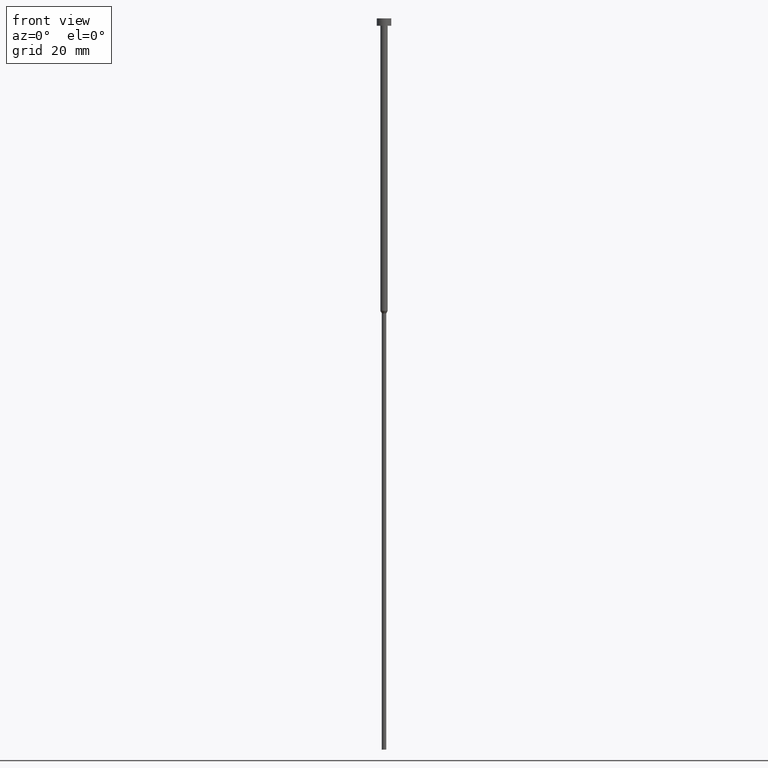
[diagram: clean part render]
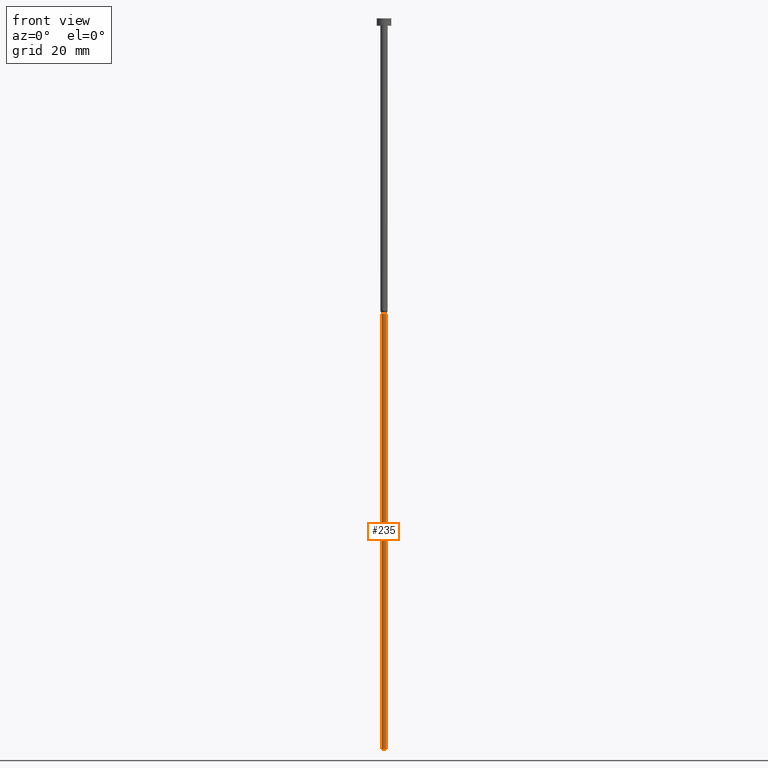
[diagram: same view with one face highlighted and labeled with its STEP entity id]
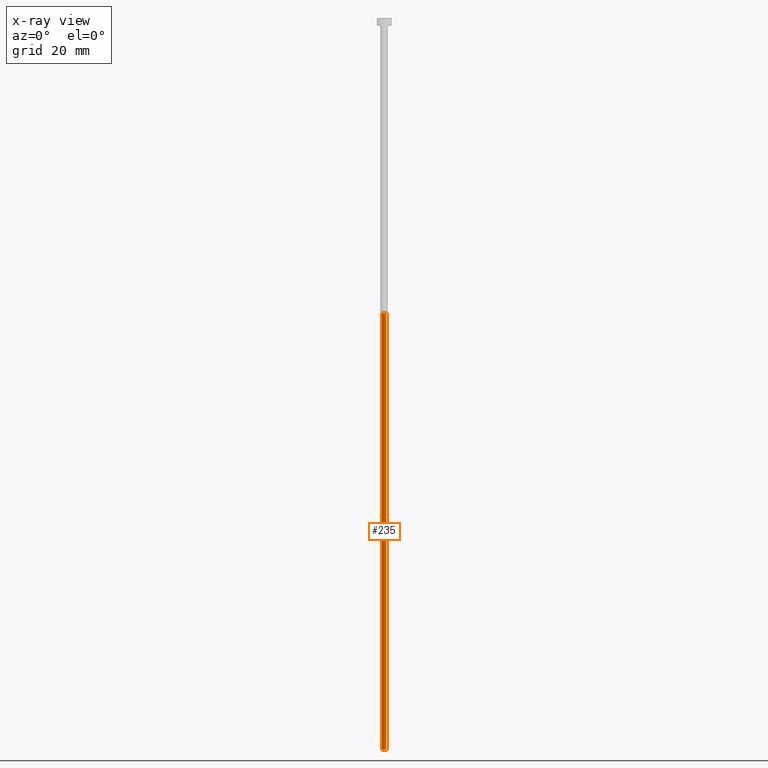
[diagram: x-ray of the same camera — body ghosted, the highlighted face saturated]
A machine part, front view. The second image highlights one B-rep face of the part: STEP entity #235.
The next image is the same camera in x-ray: the body ghosted, the highlighted face saturated — about 0% of this face is hidden behind the body in this view.
In plain terms, the highlighted cylindrical surface (edge-blend (fillet) strip) has radius 0.6 mm, axis along (-0, -0, 1).
Its self-contained STEP definition (entity closure, byte-faithful):
#4 = DIRECTION ( 'NONE',  ( 1.000000000000000000, 0.000000000000000000, 0.000000000000000000 ) ) ;
#9 = CIRCLE ( 'NONE', #47, 0.5999999999999998668 ) ;
#47 = AXIS2_PLACEMENT_3D ( 'NONE', #131, #274, #191 ) ;
#57 = EDGE_CURVE ( 'NONE', #333, #276, #295, .T. ) ;
#78 = AXIS2_PLACEMENT_3D ( 'NONE', #112, #246, #119 ) ;
#80 = EDGE_CURVE ( 'NONE', #333, #122, #9, .T. ) ;
#84 = CARTESIAN_POINT ( 'NONE',  ( 0.5999999999999998668, 0.000000000000000000, -80.69282032302756136 ) ) ;
#85 = DIRECTION ( 'NONE',  ( -0.000000000000000000, -0.000000000000000000, 1.000000000000000000 ) ) ;
#87 = ORIENTED_EDGE ( 'NONE', *, *, #250, .T. ) ;
#95 = ORIENTED_EDGE ( 'NONE', *, *, #57, .F. ) ;
#97 = ORIENTED_EDGE ( 'NONE', *, *, #324, .F. ) ;
#112 = CARTESIAN_POINT ( 'NONE',  ( 0.000000000000000000, 0.000000000000000000, -80.69282032302756136 ) ) ;
#114 = VECTOR ( 'NONE', #301, 1000.000000000000000 ) ;
#119 = DIRECTION ( 'NONE',  ( 1.000000000000000000, 0.000000000000000000, 0.000000000000000000 ) ) ;
#121 = FACE_OUTER_BOUND ( 'NONE', #261, .T. ) ;
#122 = VERTEX_POINT ( 'NONE', #186 ) ;
#131 = CARTESIAN_POINT ( 'NONE',  ( 0.000000000000000000, 0.000000000000000000, -200.0000000000000000 ) ) ;
#168 = CYLINDRICAL_SURFACE ( 'NONE', #275, 0.5999999999999998668 ) ;
#177 = CARTESIAN_POINT ( 'NONE',  ( -0.5999999999999998668, 7.347880794884117764E-17, -80.69282032302756136 ) ) ;
#186 = CARTESIAN_POINT ( 'NONE',  ( 0.5999999999999998668, 0.000000000000000000, -200.0000000000000000 ) ) ;
#191 = DIRECTION ( 'NONE',  ( 1.000000000000000000, 0.000000000000000000, 0.000000000000000000 ) ) ;
#193 = CARTESIAN_POINT ( 'NONE',  ( -0.5999999999999998668, 7.347880794884117764E-17, -200.0000000000000000 ) ) ;
#213 = DIRECTION ( 'NONE',  ( -0.000000000000000000, -0.000000000000000000, 1.000000000000000000 ) ) ;
#235 = ADVANCED_FACE ( 'NONE', ( #121 ), #168, .T. ) ;
#246 = DIRECTION ( 'NONE',  ( -0.000000000000000000, -0.000000000000000000, 1.000000000000000000 ) ) ;
#250 = EDGE_CURVE ( 'NONE', #122, #309, #334, .T. ) ;
#253 = VECTOR ( 'NONE', #213, 1000.000000000000000 ) ;
#261 = EDGE_LOOP ( 'NONE', ( #95, #266, #87, #97 ) ) ;
#266 = ORIENTED_EDGE ( 'NONE', *, *, #80, .T. ) ;
#274 = DIRECTION ( 'NONE',  ( -0.000000000000000000, -0.000000000000000000, 1.000000000000000000 ) ) ;
#275 = AXIS2_PLACEMENT_3D ( 'NONE', #278, #85, #4 ) ;
#276 = VERTEX_POINT ( 'NONE', #177 ) ;
#278 = CARTESIAN_POINT ( 'NONE',  ( 0.000000000000000000, 0.000000000000000000, 0.000000000000000000 ) ) ;
#283 = CIRCLE ( 'NONE', #78, 0.5999999999999998668 ) ;
#295 = LINE ( 'NONE', #319, #253 ) ;
#301 = DIRECTION ( 'NONE',  ( -0.000000000000000000, -0.000000000000000000, 1.000000000000000000 ) ) ;
#309 = VERTEX_POINT ( 'NONE', #84 ) ;
#310 = CARTESIAN_POINT ( 'NONE',  ( 0.5999999999999998668, 0.000000000000000000, 0.000000000000000000 ) ) ;
#319 = CARTESIAN_POINT ( 'NONE',  ( -0.5999999999999998668, 7.347880794884117764E-17, 0.000000000000000000 ) ) ;
#324 = EDGE_CURVE ( 'NONE', #276, #309, #283, .T. ) ;
#333 = VERTEX_POINT ( 'NONE', #193 ) ;
#334 = LINE ( 'NONE', #310, #114 ) ;